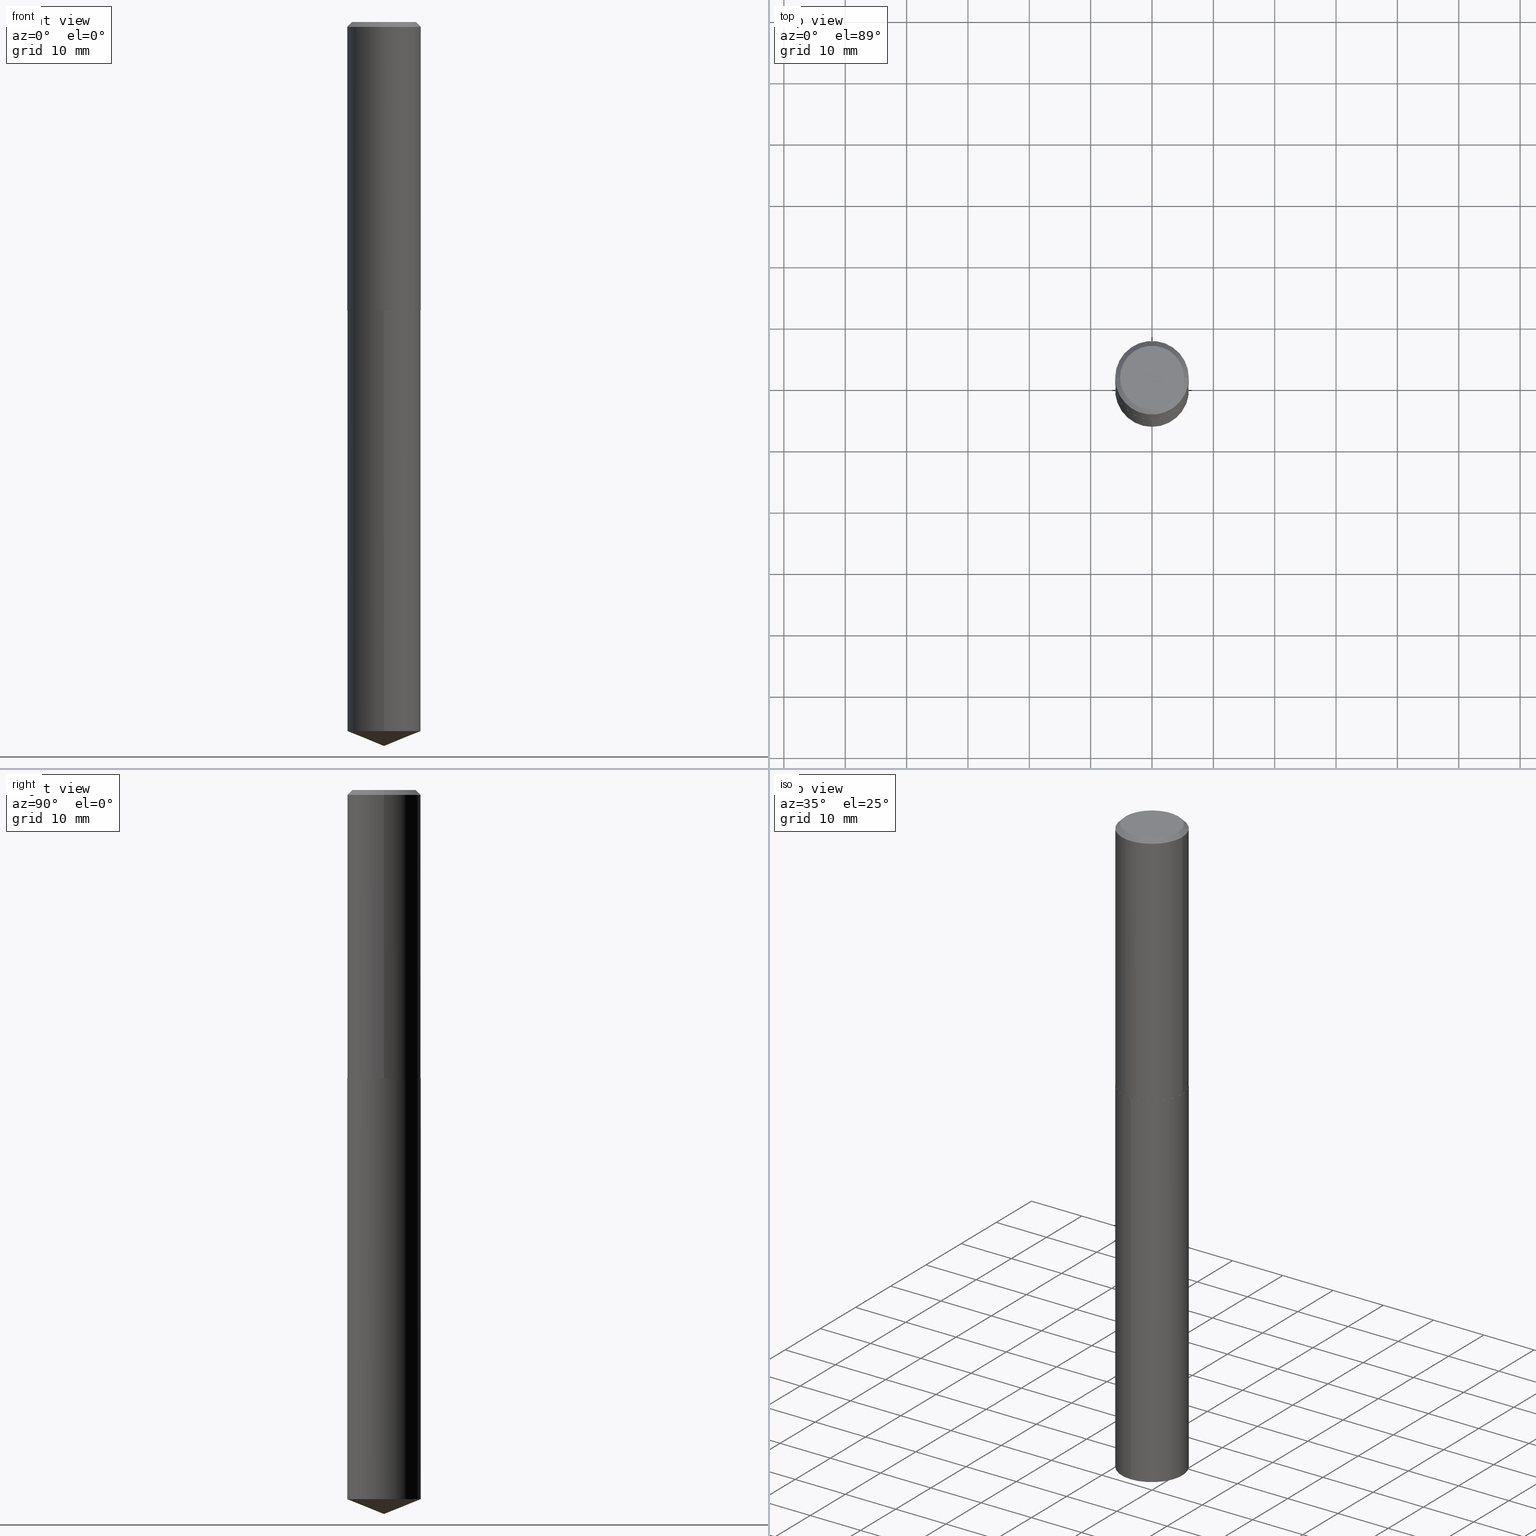
[diagram: canonical four-view strip — front | top / right | iso, engineering-drawing reading convention]
A machine part, canonical four-view strip (front | top / right | iso — engineering-drawing reading convention). The complete STEP part file that produces these views, byte-faithful:
ISO-10303-21;
HEADER;
FILE_DESCRIPTION (( 'STEP AP203' ),
    '1' );
FILE_NAME ('69313.STEP',
    '2024-04-23T14:51:10',
    ( '' ),
    ( '' ),
    'SwSTEP 2.0',
    'SolidWorks 2023',
    '' );
FILE_SCHEMA (( 'CONFIG_CONTROL_DESIGN' ));
ENDSEC;

DATA;
#1 = LINE ( 'NONE', #293, #345 ) ;
#2 = EDGE_CURVE ( 'NONE', #341, #348, #40, .T. ) ;
#3 = EDGE_LOOP ( 'NONE', ( #312, #317, #286, #302 ) ) ;
#4 = FACE_OUTER_BOUND ( 'NONE', #289, .T. ) ;
#5 = CONICAL_SURFACE ( 'NONE', #137, 0.2362000000000002709, 0.7853981633976532262 ) ;
#6 = DIRECTION ( 'NONE',  ( 1.000000000000000000, -6.982962677686269077E-15, 0.000000000000000000 ) ) ;
#7 = FACE_OUTER_BOUND ( 'NONE', #259, .T. ) ;
#8 = DIRECTION ( 'NONE',  ( -2.445468806185136877E-29, 3.491481338843145188E-15, 1.000000000000000000 ) ) ;
#9 = EDGE_CURVE ( 'NONE', #127, #17, #284, .T. ) ;
#10 = CIRCLE ( 'NONE', #91, 0.2361999999999999933 ) ;
#11 = CYLINDRICAL_SURFACE ( 'NONE', #86, 0.2361999999999999933 ) ;
#12 = ORIENTED_EDGE ( 'NONE', *, *, #224, .T. ) ;
#13 = COORDINATED_UNIVERSAL_TIME_OFFSET ( 5, 0, .BEHIND. ) ;
#14 = ORIENTED_EDGE ( 'NONE', *, *, #54, .F. ) ;
#15 = AXIS2_PLACEMENT_3D ( 'NONE', #288, #73, #141 ) ;
#16 = PERSON_AND_ORGANIZATION ( #270, #80 ) ;
#17 = VERTEX_POINT ( 'NONE', #319 ) ;
#18 = PERSON_AND_ORGANIZATION ( #270, #80 ) ;
#19 = ORIENTED_EDGE ( 'NONE', *, *, #292, .F. ) ;
#20 = ORIENTED_EDGE ( 'NONE', *, *, #343, .F. ) ;
#21 = ADVANCED_FACE ( 'NONE', ( #357 ), #188, .F. ) ;
#22 = LINE ( 'NONE', #361, #307 ) ;
#23 = DIRECTION ( 'NONE',  ( -2.445731720170191402E-29, 3.491104831052412813E-15, 1.000000000000000000 ) ) ;
#24 = DESIGN_CONTEXT ( 'detailed design', #313, 'design' ) ;
#25 = EDGE_CURVE ( 'NONE', #348, #341, #353, .T. ) ;
#26 = CARTESIAN_POINT ( 'NONE',  ( 4.524606385203739825E-29, -6.459938773127588186E-15, -1.850200000000000067 ) ) ;
#27 = AXIS2_PLACEMENT_3D ( 'NONE', #258, #385, #358 ) ;
#28 = DIRECTION ( 'NONE',  ( -2.445468806185136597E-29, 3.491481338843145583E-15, 1.000000000000000000 ) ) ;
#29 = LOCAL_TIME ( 10, 51, 10.00000000000000000, #377 ) ;
#30 = DIRECTION ( 'NONE',  ( 2.445468806185136597E-29, -3.491481338843145583E-15, -1.000000000000000000 ) ) ;
#31 = CC_DESIGN_PERSON_AND_ORGANIZATION_ASSIGNMENT ( #111, #163, ( #329 ) ) ;
#32 = FACE_OUTER_BOUND ( 'NONE', #112, .T. ) ;
#33 = DIRECTION ( 'NONE',  ( -2.445731720170191402E-29, 3.491104831052412813E-15, 1.000000000000000000 ) ) ;
#34 = VECTOR ( 'NONE', #33, 39.37007874015748143 ) ;
#35 = LOCAL_TIME ( 10, 51, 10.00000000000000000, #225 ) ;
#36 = DIRECTION ( 'NONE',  ( 1.000000000000000000, -6.982962677686265922E-15, 0.000000000000000000 ) ) ;
#37 = ADVANCED_FACE ( 'NONE', ( #202 ), #5, .T. ) ;
#38 = LINE ( 'NONE', #368, #153 ) ;
#39 = CARTESIAN_POINT ( 'NONE',  ( 1.678301941865468215E-15, 0.2361999999999935540, -1.850700000000000900 ) ) ;
#40 = CIRCLE ( 'NONE', #359, 0.2049499999999999933 ) ;
#41 = APPROVAL_STATUS ( 'not_yet_approved' ) ;
#42 = EDGE_CURVE ( 'NONE', #257, #328, #1, .T. ) ;
#43 = PERSON_AND_ORGANIZATION ( #270, #80 ) ;
#44 = DIRECTION ( 'NONE',  ( -2.445468806185136597E-29, 3.491481338843145583E-15, 1.000000000000000000 ) ) ;
#45 = ORIENTED_EDGE ( 'NONE', *, *, #9, .T. ) ;
#46 = CC_DESIGN_APPROVAL ( #266, ( #329 ) ) ;
#47 = PERSON_AND_ORGANIZATION_ROLE ( 'classification_officer' ) ;
#48 = ORIENTED_EDGE ( 'NONE', *, *, #228, .T. ) ;
#49 = ADVANCED_FACE ( 'NONE', ( #114 ), #176, .T. ) ;
#50 = PERSON_AND_ORGANIZATION ( #270, #80 ) ;
#51 = EDGE_LOOP ( 'NONE', ( #381, #222 ) ) ;
#52 = DIRECTION ( 'NONE',  ( 2.438088387897960049E-29, -3.491481338843145188E-15, -1.000000000000000000 ) ) ;
#53 = FACE_OUTER_BOUND ( 'NONE', #242, .T. ) ;
#54 = EDGE_CURVE ( 'NONE', #246, #349, #61, .T. ) ;
#55 = CARTESIAN_POINT ( 'NONE',  ( 4.525829119606832626E-29, -6.461684513797009689E-15, -1.850700000000000012 ) ) ;
#56 = LINE ( 'NONE', #175, #165 ) ;
#57 = CIRCLE ( 'NONE', #200, 0.2361999999999999933 ) ;
#58 = CIRCLE ( 'NONE', #27, 0.2357000000000001594 ) ;
#59 = FACE_OUTER_BOUND ( 'NONE', #243, .T. ) ;
#60 = EDGE_CURVE ( 'NONE', #349, #257, #10, .T. ) ;
#61 = LINE ( 'NONE', #388, #185 ) ;
#62 = DIRECTION ( 'NONE',  ( -2.445731720170191122E-29, 3.491104831052412813E-15, 1.000000000000000000 ) ) ;
#63 = ORIENTED_EDGE ( 'NONE', *, *, #9, .F. ) ;
#64 = AXIS2_PLACEMENT_3D ( 'NONE', #299, #30, #89 ) ;
#65 = LINE ( 'NONE', #184, #110 ) ;
#66 = ORIENTED_EDGE ( 'NONE', *, *, #298, .F. ) ;
#67 = DIRECTION ( 'NONE',  ( -6.982962677686265922E-15, -1.000000000000000000, 4.626330217890369336E-15 ) ) ;
#68 = DATE_TIME_ROLE ( 'creation_date' ) ;
#69 = AXIS2_PLACEMENT_3D ( 'NONE', #227, #260, #264 ) ;
#70 = ORIENTED_EDGE ( 'NONE', *, *, #372, .T. ) ;
#71 = MANIFOLD_SOLID_BREP ( 'Body-Move/Copy2[1]', #365 ) ;
#72 = APPROVAL_DATE_TIME ( #220, #266 ) ;
#73 = DIRECTION ( 'NONE',  ( -2.445468806185136597E-29, 3.491481338843145583E-15, 1.000000000000000000 ) ) ;
#74 = APPROVAL_ROLE ( '' ) ;
#75 = ORIENTED_EDGE ( 'NONE', *, *, #228, .F. ) ;
#76 = APPROVAL_DATE_TIME ( #187, #356 ) ;
#77 = ORIENTED_EDGE ( 'NONE', *, *, #343, .T. ) ;
#78 = AXIS2_PLACEMENT_3D ( 'NONE', #360, #150, #118 ) ;
#79 = EDGE_CURVE ( 'NONE', #139, #238, #256, .T. ) ;
#80 = ORGANIZATION ( 'UNSPECIFIED', 'UNSPECIFIED', '' ) ;
#81 = APPROVAL_STATUS ( 'not_yet_approved' ) ;
#82 = ORIENTED_EDGE ( 'NONE', *, *, #350, .T. ) ;
#83 = EDGE_LOOP ( 'NONE', ( #352, #267, #45, #66 ) ) ;
#84 = CARTESIAN_POINT ( 'NONE',  ( 7.642090019328607041E-31, -1.091087918388490883E-16, -0.03125000000000022898 ) ) ;
#85 = VECTOR ( 'NONE', #300, 39.37007874015748143 ) ;
#86 = AXIS2_PLACEMENT_3D ( 'NONE', #277, #271, #239 ) ;
#87 = DIRECTION ( 'NONE',  ( -1.000000000000000000, 6.982962677686266711E-15, 0.000000000000000000 ) ) ;
#88 = DIRECTION ( 'NONE',  ( -2.438088387897960049E-29, 3.491481338843145188E-15, 1.000000000000000000 ) ) ;
#89 = DIRECTION ( 'NONE',  ( -1.000000000000000000, 6.982962677686266711E-15, 0.000000000000000000 ) ) ;
#90 = ADVANCED_FACE ( 'NONE', ( #233 ), #147, .T. ) ;
#91 = AXIS2_PLACEMENT_3D ( 'NONE', #148, #265, #204 ) ;
#92 = FACE_OUTER_BOUND ( 'NONE', #136, .T. ) ;
#93 = CARTESIAN_POINT ( 'NONE',  ( -1.649375784469385099E-15, -0.2362000000000159805, -4.550569005457735905 ) ) ;
#94 = CARTESIAN_POINT ( 'NONE',  ( 1.136287810528595700E-28, -1.621967304506950869E-14, -4.645999999999999908 ) ) ;
#95 = CC_DESIGN_PERSON_AND_ORGANIZATION_ASSIGNMENT ( #190, #47, ( #123 ) ) ;
#96 = CARTESIAN_POINT ( 'NONE',  ( 4.525829119606832626E-29, -6.461684513797009689E-15, -1.850700000000000012 ) ) ;
#97 = DIRECTION ( 'NONE',  ( -2.445468806185136597E-29, 3.491481338843145583E-15, 1.000000000000000000 ) ) ;
#98 = EDGE_CURVE ( 'NONE', #341, #127, #205, .T. ) ;
#99 = DIRECTION ( 'NONE',  ( 6.982962677686265922E-15, 1.000000000000000000, -3.491104831052412813E-15 ) ) ;
#100 = ORIENTED_EDGE ( 'NONE', *, *, #244, .T. ) ;
#101 = EDGE_LOOP ( 'NONE', ( #12, #105, #378, #109 ) ) ;
#102 = CONICAL_SURFACE ( 'NONE', #275, 0.2361999999999999933, 0.7853981633974447263 ) ;
#103 = PRODUCT_DEFINITION_FORMATION_WITH_SPECIFIED_SOURCE ( 'ANY', '', #384, .NOT_KNOWN. ) ;
#104 = CALENDAR_DATE ( 2024, 23, 4 ) ;
#105 = ORIENTED_EDGE ( 'NONE', *, *, #125, .T. ) ;
#106 = DIRECTION ( 'NONE',  ( 1.000000000000000000, 0.000000000000000000, 0.000000000000000000 ) ) ;
#107 = EDGE_LOOP ( 'NONE', ( #334, #143, #196, #77 ) ) ;
#108 = ADVANCED_FACE ( 'NONE', ( #92 ), #172, .T. ) ;
#109 = ORIENTED_EDGE ( 'NONE', *, *, #183, .F. ) ;
#110 = VECTOR ( 'NONE', #8, 39.37007874015748143 ) ;
#111 = PERSON_AND_ORGANIZATION ( #270, #80 ) ;
#112 = EDGE_LOOP ( 'NONE', ( #193, #383, #379, #75 ) ) ;
#113 = ADVANCED_FACE ( 'NONE', ( #59 ), #130, .T. ) ;
#114 = FACE_OUTER_BOUND ( 'NONE', #101, .T. ) ;
#115 = CARTESIAN_POINT ( 'NONE',  ( 0.2361999999999999933, -1.758484576308345231E-15, -0.03125000000000022898 ) ) ;
#116 = VECTOR ( 'NONE', #230, 39.37007874015748143 ) ;
#117 = AXIS2_PLACEMENT_3D ( 'NONE', #252, #380, #106 ) ;
#118 = DIRECTION ( 'NONE',  ( 1.000000000000000000, -6.982962677686269077E-15, 0.000000000000000000 ) ) ;
#119 = FACE_OUTER_BOUND ( 'NONE', #107, .T. ) ;
#120 = CC_DESIGN_PERSON_AND_ORGANIZATION_ASSIGNMENT ( #43, #250, ( #103 ) ) ;
#121 = CARTESIAN_POINT ( 'NONE',  ( 4.524606385203739825E-29, -6.459938773127588186E-15, -1.850200000000000067 ) ) ;
#122 = CIRCLE ( 'NONE', #144, 0.2361999999999999933 ) ;
#123 = SECURITY_CLASSIFICATION ( '', '', #282 ) ;
#124 = CARTESIAN_POINT ( 'NONE',  ( -1.649375784469450574E-15, -0.2362000000000064603, -1.850699999999999124 ) ) ;
#125 = EDGE_CURVE ( 'NONE', #249, #139, #22, .T. ) ;
#126 = DIRECTION ( 'NONE',  ( -2.445731720170191122E-29, 3.491104831052412813E-15, 1.000000000000000000 ) ) ;
#127 = VERTEX_POINT ( 'NONE', #115 ) ;
#128 = DIRECTION ( 'NONE',  ( -6.982962677686265922E-15, -1.000000000000000000, 3.469747663417777397E-15 ) ) ;
#129 = CARTESIAN_POINT ( 'NONE',  ( -0.2049499999999999933, 1.485712596711223663E-15, 4.818985154634640807E-18 ) ) ;
#130 = CONICAL_SURFACE ( 'NONE', #211, 97.44436430772951496, 1.186823891356148852 ) ;
#131 = CIRCLE ( 'NONE', #194, 0.2361999999999999933 ) ;
#132 = CARTESIAN_POINT ( 'NONE',  ( -8.492626740340265813E-28, 1.212247022406398473E-13, 34.72407874015748064 ) ) ;
#133 = ADVANCED_FACE ( 'NONE', ( #119 ), #223, .T. ) ;
#134 = DIRECTION ( 'NONE',  ( -1.000000000000000000, 6.982962677686265922E-15, -4.876176775795935793E-29 ) ) ;
#135 = DATE_AND_TIME ( #218, #339 ) ;
#136 = EDGE_LOOP ( 'NONE', ( #253, #219, #283, #20 ) ) ;
#137 = AXIS2_PLACEMENT_3D ( 'NONE', #26, #28, #146 ) ;
#138 = APPROVAL_ROLE ( '' ) ;
#139 = VERTEX_POINT ( 'NONE', #294 ) ;
#140 = SHAPE_DEFINITION_REPRESENTATION ( #320, #281 ) ;
#141 = DIRECTION ( 'NONE',  ( 1.000000000000000000, -6.982962677686266711E-15, 0.000000000000000000 ) ) ;
#142 = MECHANICAL_CONTEXT ( 'NONE', #295, 'mechanical' ) ;
#143 = ORIENTED_EDGE ( 'NONE', *, *, #25, .F. ) ;
#144 = AXIS2_PLACEMENT_3D ( 'NONE', #229, #178, #363 ) ;
#145 = APPROVAL ( #192, 'UNSPECIFIED' ) ;
#146 = DIRECTION ( 'NONE',  ( 1.000000000000000000, -6.982962677686269077E-15, 0.000000000000000000 ) ) ;
#147 = CYLINDRICAL_SURFACE ( 'NONE', #338, 0.2362000000000001321 ) ;
#148 = CARTESIAN_POINT ( 'NONE',  ( 1.112898438655916629E-28, -1.588721024195918932E-14, -4.550569005457737681 ) ) ;
#149 = CC_DESIGN_APPROVAL ( #356, ( #103 ) ) ;
#150 = DIRECTION ( 'NONE',  ( -2.445468806185136597E-29, 3.491481338843145583E-15, 1.000000000000000000 ) ) ;
#151 = FACE_OUTER_BOUND ( 'NONE', #83, .T. ) ;
#152 = DIRECTION ( 'NONE',  ( -2.445731720170191122E-29, 3.491104831052412813E-15, 1.000000000000000000 ) ) ;
#153 = VECTOR ( 'NONE', #179, 39.37007874015748143 ) ;
#154 = CARTESIAN_POINT ( 'NONE',  ( 7.642090019328607041E-31, -1.091087918388490883E-16, -0.03125000000000022898 ) ) ;
#155 = PLANE ( 'NONE',  #276 ) ;
#156 = CARTESIAN_POINT ( 'NONE',  ( 1.112898438655916629E-28, -1.588721024195918932E-14, -4.550569005457737681 ) ) ;
#157 = AXIS2_PLACEMENT_3D ( 'NONE', #237, #304, #128 ) ;
#158 = DIRECTION ( 'NONE',  ( 2.445731720170190841E-29, -3.491104831052412813E-15, -1.000000000000000000 ) ) ;
#159 = EDGE_CURVE ( 'NONE', #249, #221, #58, .T. ) ;
#160 = APPROVAL_ROLE ( '' ) ;
#161 = DIRECTION ( 'NONE',  ( 1.000000000000000000, -6.982962677686266711E-15, 4.876118559169178830E-29 ) ) ;
#162 = EDGE_CURVE ( 'NONE', #251, #328, #122, .T. ) ;
#163 = PERSON_AND_ORGANIZATION_ROLE ( 'creator' ) ;
#164 = ORIENTED_EDGE ( 'NONE', *, *, #162, .T. ) ;
#165 = VECTOR ( 'NONE', #296, 39.37007874015748854 ) ;
#166 = DATE_AND_TIME ( #315, #29 ) ;
#167 = DIRECTION ( 'NONE',  ( -2.445468806185136597E-29, 3.491481338843145583E-15, 1.000000000000000000 ) ) ;
#168 =( NAMED_UNIT ( * ) PLANE_ANGLE_UNIT ( ) SI_UNIT ( $, .RADIAN. ) );
#169 = ADVANCED_FACE ( 'NONE', ( #151 ), #102, .T. ) ;
#170 = ORIENTED_EDGE ( 'NONE', *, *, #372, .F. ) ;
#171 = EDGE_LOOP ( 'NONE', ( #82, #100, #63, #342 ) ) ;
#172 = CYLINDRICAL_SURFACE ( 'NONE', #69, 0.2362000000000001321 ) ;
#173 = DIRECTION ( 'NONE',  ( -6.474490251793188884E-15, -0.9271838545667878684, 0.3746065934159108490 ) ) ;
#174 = ADVANCED_FACE ( 'NONE', ( #53 ), #324, .F. ) ;
#175 = CARTESIAN_POINT ( 'NONE',  ( 0.2362000000000002709, -8.109314557597087077E-15, -1.850200000000000067 ) ) ;
#176 = CONICAL_SURFACE ( 'NONE', #370, 0.2362000000000002709, 0.7853981633976532262 ) ;
#177 = LOCAL_TIME ( 10, 51, 10.00000000000000000, #285 ) ;
#178 = DIRECTION ( 'NONE',  ( -2.445731720170191122E-29, 3.491104831052412813E-15, 1.000000000000000000 ) ) ;
#179 = DIRECTION ( 'NONE',  ( -2.445468806185136877E-29, 3.491481338843145188E-15, 1.000000000000000000 ) ) ;
#180 = CARTESIAN_POINT ( 'NONE',  ( -1.649375784469450574E-15, -0.2362000000000064603, -1.850699999999999124 ) ) ;
#181 = DIRECTION ( 'NONE',  ( -2.445468806185136597E-29, 3.491481338843145583E-15, 1.000000000000000000 ) ) ;
#182 = CARTESIAN_POINT ( 'NONE',  ( 4.525829119606832626E-29, -6.461684513797009689E-15, -1.850700000000000012 ) ) ;
#183 = EDGE_CURVE ( 'NONE', #221, #238, #56, .T. ) ;
#184 = CARTESIAN_POINT ( 'NONE',  ( -0.2362000000000001321, 1.678301941865357577E-15, -1.161852468318209457E-29 ) ) ;
#185 = VECTOR ( 'NONE', #173, 39.37007874015748143 ) ;
#186 = LOCAL_TIME ( 10, 51, 10.00000000000000000, #195 ) ;
#187 = DATE_AND_TIME ( #318, #35 ) ;
#188 = PLANE ( 'NONE',  #215 ) ;
#189 = EDGE_CURVE ( 'NONE', #238, #127, #38, .T. ) ;
#190 = PERSON_AND_ORGANIZATION ( #270, #80 ) ;
#191 = ORIENTED_EDGE ( 'NONE', *, *, #42, .T. ) ;
#192 = APPROVAL_STATUS ( 'not_yet_approved' ) ;
#193 = ORIENTED_EDGE ( 'NONE', *, *, #42, .F. ) ;
#194 = AXIS2_PLACEMENT_3D ( 'NONE', #154, #268, #241 ) ;
#195 = COORDINATED_UNIVERSAL_TIME_OFFSET ( 5, 0, .BEHIND. ) ;
#196 = ORIENTED_EDGE ( 'NONE', *, *, #298, .T. ) ;
#197 = ADVANCED_FACE ( 'NONE', ( #7 ), #155, .F. ) ;
#198 = CARTESIAN_POINT ( 'NONE',  ( -1.178467787315321149E-46, 1.682539673960460649E-32, 4.818985154644839761E-18 ) ) ;
#199 = DIRECTION ( 'NONE',  ( 2.445468806185136597E-29, -3.491481338843145583E-15, -1.000000000000000000 ) ) ;
#200 = AXIS2_PLACEMENT_3D ( 'NONE', #182, #62, #273 ) ;
#201 = CONICAL_SURFACE ( 'NONE', #212, 97.44436430772951496, 1.186823891356148852 ) ;
#202 = FACE_OUTER_BOUND ( 'NONE', #3, .T. ) ;
#203 = CC_DESIGN_DATE_AND_TIME_ASSIGNMENT ( #308, #68, ( #329 ) ) ;
#204 = DIRECTION ( 'NONE',  ( -6.982962677686265922E-15, -1.000000000000000000, 4.626330217890369336E-15 ) ) ;
#205 = LINE ( 'NONE', #330, #116 ) ;
#206 = AXIS2_PLACEMENT_3D ( 'NONE', #344, #181, #36 ) ;
#207 = CC_DESIGN_DATE_AND_TIME_ASSIGNMENT ( #135, #248, ( #123 ) ) ;
#208 = DIRECTION ( 'NONE',  ( -2.445731720170191122E-29, 3.491104831052412813E-15, 1.000000000000000000 ) ) ;
#209 = LINE ( 'NONE', #94, #297 ) ;
#210 = DIRECTION ( 'NONE',  ( -6.982962677686266711E-15, -1.000000000000000000, 3.498761904101788509E-15 ) ) ;
#211 = AXIS2_PLACEMENT_3D ( 'NONE', #390, #208, #290 ) ;
#212 = AXIS2_PLACEMENT_3D ( 'NONE', #132, #126, #210 ) ;
#213 = CARTESIAN_POINT ( 'NONE',  ( 0.2362000000000002709, -8.109314557597087077E-15, -1.850200000000000067 ) ) ;
#214 = CARTESIAN_POINT ( 'NONE',  ( -0.2357000000000001594, -4.784286058436341415E-15, -1.850700000000000012 ) ) ;
#215 = AXIS2_PLACEMENT_3D ( 'NONE', #321, #52, #134 ) ;
#216 = APPLICATION_PROTOCOL_DEFINITION ( 'international standard', 'config_control_design', 1994, #313 ) ;
#217 = DIRECTION ( 'NONE',  ( 1.000000000000000000, -6.982962677686266711E-15, 4.876118559169178830E-29 ) ) ;
#218 = CALENDAR_DATE ( 2024, 23, 4 ) ;
#219 = ORIENTED_EDGE ( 'NONE', *, *, #79, .T. ) ;
#220 = DATE_AND_TIME ( #347, #186 ) ;
#221 = VERTEX_POINT ( 'NONE', #236 ) ;
#222 = ORIENTED_EDGE ( 'NONE', *, *, #2, .T. ) ;
#223 = CONICAL_SURFACE ( 'NONE', #64, 0.2361999999999999933, 0.7853981633974447263 ) ;
#224 = EDGE_CURVE ( 'NONE', #221, #249, #375, .T. ) ;
#225 = COORDINATED_UNIVERSAL_TIME_OFFSET ( 5, 0, .BEHIND. ) ;
#226 = ORIENTED_EDGE ( 'NONE', *, *, #60, .T. ) ;
#227 = CARTESIAN_POINT ( 'NONE',  ( 0.000000000000000000, 0.000000000000000000, 0.000000000000000000 ) ) ;
#228 = EDGE_CURVE ( 'NONE', #328, #251, #57, .T. ) ;
#229 = CARTESIAN_POINT ( 'NONE',  ( 4.525829119606832626E-29, -6.461684513797009689E-15, -1.850700000000000012 ) ) ;
#230 = DIRECTION ( 'NONE',  ( 0.7071067811865450192, -7.319954787623246579E-15, -0.7071067811865500152 ) ) ;
#231 = DIRECTION ( 'NONE',  ( -2.445468806185136597E-29, 3.491481338843145583E-15, 1.000000000000000000 ) ) ;
#232 = ORIENTED_EDGE ( 'NONE', *, *, #54, .T. ) ;
#233 = FACE_OUTER_BOUND ( 'NONE', #171, .T. ) ;
#234 = ORIENTED_EDGE ( 'NONE', *, *, #278, .F. ) ;
#235 = CC_DESIGN_SECURITY_CLASSIFICATION ( #123, ( #103 ) ) ;
#236 = CARTESIAN_POINT ( 'NONE',  ( 0.2357000000000001594, -8.107568816927663207E-15, -1.850700000000000012 ) ) ;
#237 = CARTESIAN_POINT ( 'NONE',  ( 4.525829119606832626E-29, -6.461684513797009689E-15, -1.850700000000000012 ) ) ;
#238 = VERTEX_POINT ( 'NONE', #213 ) ;
#239 = DIRECTION ( 'NONE',  ( -6.982962677686265922E-15, -1.000000000000000000, 3.469747663417777397E-15 ) ) ;
#240 = CARTESIAN_POINT ( 'NONE',  ( 4.524606385203739825E-29, -6.459938773127588186E-15, -1.850200000000000067 ) ) ;
#241 = DIRECTION ( 'NONE',  ( 1.000000000000000000, -6.982962677686266711E-15, 0.000000000000000000 ) ) ;
#242 = EDGE_LOOP ( 'NONE', ( #327, #306 ) ) ;
#243 = EDGE_LOOP ( 'NONE', ( #14, #70, #279 ) ) ;
#244 = EDGE_CURVE ( 'NONE', #139, #17, #65, .T. ) ;
#245 =( NAMED_UNIT ( * ) SI_UNIT ( $, .STERADIAN. ) SOLID_ANGLE_UNIT ( ) );
#246 = VERTEX_POINT ( 'NONE', #371 ) ;
#247 = CIRCLE ( 'NONE', #331, 0.2361999999999999933 ) ;
#248 = DATE_TIME_ROLE ( 'classification_date' ) ;
#249 = VERTEX_POINT ( 'NONE', #214 ) ;
#250 = PERSON_AND_ORGANIZATION_ROLE ( 'design_supplier' ) ;
#251 = VERTEX_POINT ( 'NONE', #124 ) ;
#252 = CARTESIAN_POINT ( 'NONE',  ( 0.000000000000000000, 0.000000000000000000, 0.000000000000000000 ) ) ;
#253 = ORIENTED_EDGE ( 'NONE', *, *, #244, .F. ) ;
#254 = ADVANCED_FACE ( 'NONE', ( #32 ), #367, .T. ) ;
#255 = APPLICATION_PROTOCOL_DEFINITION ( 'international standard', 'config_control_design', 1994, #295 ) ;
#256 = CIRCLE ( 'NONE', #78, 0.2362000000000002709 ) ;
#257 = VERTEX_POINT ( 'NONE', #373 ) ;
#258 = CARTESIAN_POINT ( 'NONE',  ( 4.525829119606832626E-29, -6.461684513797009689E-15, -1.850700000000000012 ) ) ;
#259 = EDGE_LOOP ( 'NONE', ( #164, #48 ) ) ;
#260 = DIRECTION ( 'NONE',  ( -2.445468806185136597E-29, 3.491481338843145583E-15, 1.000000000000000000 ) ) ;
#261 = DIRECTION ( 'NONE',  ( -2.445468806185136597E-29, 3.491481338843145583E-15, 1.000000000000000000 ) ) ;
#262 = CLOSED_SHELL ( 'NONE', ( #169, #90, #49, #174, #37, #108, #133, #21 ) ) ;
#263 = APPROVAL_PERSON_ORGANIZATION ( #18, #266, #74 ) ;
#264 = DIRECTION ( 'NONE',  ( 1.000000000000000000, -6.982962677686266711E-15, 4.876176775795936353E-29 ) ) ;
#265 = DIRECTION ( 'NONE',  ( -2.445731720170191122E-29, 3.491104831052412813E-15, 1.000000000000000000 ) ) ;
#266 = APPROVAL ( #81, 'UNSPECIFIED' ) ;
#267 = ORIENTED_EDGE ( 'NONE', *, *, #98, .T. ) ;
#268 = DIRECTION ( 'NONE',  ( -2.445468806185136597E-29, 3.491481338843145583E-15, 1.000000000000000000 ) ) ;
#269 = APPROVAL_PERSON_ORGANIZATION ( #351, #356, #160 ) ;
#270 = PERSON ( 'UNSPECIFIED', 'UNSPECIFIED', 'UNSPECIFIED', ('UNSPECIFIED'), ('UNSPECIFIED'), ('UNSPECIFIED') ) ;
#271 = DIRECTION ( 'NONE',  ( -2.445731720170191122E-29, 3.491104831052412813E-15, 1.000000000000000000 ) ) ;
#272 = PRODUCT_RELATED_PRODUCT_CATEGORY ( 'detail', '', ( #384 ) ) ;
#273 = DIRECTION ( 'NONE',  ( -6.982962677686265922E-15, -1.000000000000000000, 3.469747663417777397E-15 ) ) ;
#274 = FACE_OUTER_BOUND ( 'NONE', #374, .T. ) ;
#275 = AXIS2_PLACEMENT_3D ( 'NONE', #84, #199, #87 ) ;
#276 = AXIS2_PLACEMENT_3D ( 'NONE', #96, #158, #99 ) ;
#277 = CARTESIAN_POINT ( 'NONE',  ( 4.525829119606832626E-29, -6.461684513797009689E-15, -1.850700000000000012 ) ) ;
#278 = EDGE_CURVE ( 'NONE', #349, #251, #340, .T. ) ;
#279 = ORIENTED_EDGE ( 'NONE', *, *, #60, .F. ) ;
#280 =( CONVERSION_BASED_UNIT ( 'INCH', #382 ) LENGTH_UNIT ( ) NAMED_UNIT ( #389 ) );
#281 = ADVANCED_BREP_SHAPE_REPRESENTATION ( '69313', ( #71, #325, #117 ), #303 ) ;
#282 = SECURITY_CLASSIFICATION_LEVEL ( 'unclassified' ) ;
#283 = ORIENTED_EDGE ( 'NONE', *, *, #189, .T. ) ;
#284 = CIRCLE ( 'NONE', #15, 0.2361999999999999933 ) ;
#285 = COORDINATED_UNIVERSAL_TIME_OFFSET ( 5, 0, .BEHIND. ) ;
#286 = ORIENTED_EDGE ( 'NONE', *, *, #183, .T. ) ;
#287 = APPROVAL_DATE_TIME ( #166, #145 ) ;
#288 = CARTESIAN_POINT ( 'NONE',  ( 7.642090019328607041E-31, -1.091087918388490883E-16, -0.03125000000000022898 ) ) ;
#289 = EDGE_LOOP ( 'NONE', ( #170, #232, #19 ) ) ;
#290 = DIRECTION ( 'NONE',  ( -6.982962677686266711E-15, -1.000000000000000000, 3.498761904101788509E-15 ) ) ;
#291 = AXIS2_PLACEMENT_3D ( 'NONE', #240, #97, #6 ) ;
#292 = EDGE_CURVE ( 'NONE', #257, #349, #247, .T. ) ;
#293 = CARTESIAN_POINT ( 'NONE',  ( 1.678301941865401754E-15, 0.2361999999999935540, -1.850700000000000900 ) ) ;
#294 = CARTESIAN_POINT ( 'NONE',  ( -0.2362000000000002709, -4.781636831262230214E-15, -1.850200000000000067 ) ) ;
#295 = APPLICATION_CONTEXT ( 'configuration controlled 3d designs of mechanical parts and assemblies' ) ;
#296 = DIRECTION ( 'NONE',  ( 0.7071067811866923458, -2.468850131083773646E-15, 0.7071067811864025776 ) ) ;
#297 = VECTOR ( 'NONE', #337, 39.37007874015748854 ) ;
#298 = EDGE_CURVE ( 'NONE', #348, #17, #305, .T. ) ;
#299 = CARTESIAN_POINT ( 'NONE',  ( 7.642090019328607041E-31, -1.091087918388490883E-16, -0.03125000000000022898 ) ) ;
#300 = DIRECTION ( 'NONE',  ( -0.7071067811865450192, 2.468850131082230634E-15, -0.7071067811865500152 ) ) ;
#301 = CARTESIAN_POINT ( 'NONE',  ( -0.2361999999999999933, 1.540266992630647030E-15, -0.03125000000000022898 ) ) ;
#302 = ORIENTED_EDGE ( 'NONE', *, *, #79, .F. ) ;
#303 =( GEOMETRIC_REPRESENTATION_CONTEXT ( 3 ) GLOBAL_UNCERTAINTY_ASSIGNED_CONTEXT ( ( #314 ) ) GLOBAL_UNIT_ASSIGNED_CONTEXT ( ( #280, #168, #245 ) ) REPRESENTATION_CONTEXT ( 'NONE', 'WORKASPACE' ) );
#304 = DIRECTION ( 'NONE',  ( -2.445731720170191122E-29, 3.491104831052412813E-15, 1.000000000000000000 ) ) ;
#305 = LINE ( 'NONE', #301, #85 ) ;
#306 = ORIENTED_EDGE ( 'NONE', *, *, #159, .F. ) ;
#307 = VECTOR ( 'NONE', #386, 39.37007874015748854 ) ;
#308 = DATE_AND_TIME ( #104, #177 ) ;
#309 = PERSON_AND_ORGANIZATION_ROLE ( 'creator' ) ;
#310 = CARTESIAN_POINT ( 'NONE',  ( -1.178467787315321149E-46, 1.682539673960460649E-32, 4.818985154644839761E-18 ) ) ;
#311 = PERSON_AND_ORGANIZATION ( #270, #80 ) ;
#312 = ORIENTED_EDGE ( 'NONE', *, *, #125, .F. ) ;
#313 = APPLICATION_CONTEXT ( 'configuration controlled 3d designs of mechanical parts and assemblies' ) ;
#314 = UNCERTAINTY_MEASURE_WITH_UNIT (LENGTH_MEASURE( 1.000000000000000082E-05 ), #280, 'distance_accuracy_value', 'NONE');
#315 = CALENDAR_DATE ( 2024, 23, 4 ) ;
#316 = CIRCLE ( 'NONE', #291, 0.2362000000000002709 ) ;
#317 = ORIENTED_EDGE ( 'NONE', *, *, #159, .T. ) ;
#318 = CALENDAR_DATE ( 2024, 23, 4 ) ;
#319 = CARTESIAN_POINT ( 'NONE',  ( -0.2361999999999999933, -1.606221840617860474E-15, -0.03125000000000022898 ) ) ;
#320 = PRODUCT_DEFINITION_SHAPE ( 'NONE', 'NONE',  #329 ) ;
#321 = CARTESIAN_POINT ( 'NONE',  ( -5.892338936576605744E-47, 8.412698369802303245E-33, 2.409492577322419881E-18 ) ) ;
#322 = AXIS2_PLACEMENT_3D ( 'NONE', #55, #88, #326 ) ;
#323 = DIRECTION ( 'NONE',  ( 1.000000000000000000, -6.982962677686269077E-15, 0.000000000000000000 ) ) ;
#324 = PLANE ( 'NONE',  #322 ) ;
#325 = MANIFOLD_SOLID_BREP ( 'Body-Move/Copy2[2]', #262 ) ;
#326 = DIRECTION ( 'NONE',  ( 1.000000000000000000, -6.982962677686265922E-15, 4.876176775795935793E-29 ) ) ;
#327 = ORIENTED_EDGE ( 'NONE', *, *, #224, .F. ) ;
#328 = VERTEX_POINT ( 'NONE', #39 ) ;
#329 = PRODUCT_DEFINITION ( 'UNKNOWN', '', #103, #24 ) ;
#330 = CARTESIAN_POINT ( 'NONE',  ( 0.2361999999999999933, -1.729558418912484771E-15, -0.03125000000000022898 ) ) ;
#331 = AXIS2_PLACEMENT_3D ( 'NONE', #156, #152, #67 ) ;
#332 = APPROVAL_PERSON_ORGANIZATION ( #16, #145, #138 ) ;
#333 = DIRECTION ( 'NONE',  ( 1.000000000000000000, -6.982962677686266711E-15, 4.876176775795936353E-29 ) ) ;
#334 = ORIENTED_EDGE ( 'NONE', *, *, #98, .F. ) ;
#335 = CARTESIAN_POINT ( 'NONE',  ( 0.2049499999999999933, -1.567808741777880040E-15, 4.818985154655325294E-18 ) ) ;
#336 = ADVANCED_FACE ( 'NONE', ( #274 ), #11, .T. ) ;
#337 = DIRECTION ( 'NONE',  ( 6.588037525764800757E-15, 0.9271838545667904219, 0.3746065934159043542 ) ) ;
#338 = AXIS2_PLACEMENT_3D ( 'NONE', #364, #261, #333 ) ;
#339 = LOCAL_TIME ( 10, 51, 10.00000000000000000, #13 ) ;
#340 = LINE ( 'NONE', #180, #34 ) ;
#341 = VERTEX_POINT ( 'NONE', #335 ) ;
#342 = ORIENTED_EDGE ( 'NONE', *, *, #189, .F. ) ;
#343 = EDGE_CURVE ( 'NONE', #17, #127, #131, .T. ) ;
#344 = CARTESIAN_POINT ( 'NONE',  ( 4.525829119606832626E-29, -6.461684513797009689E-15, -1.850700000000000012 ) ) ;
#345 = VECTOR ( 'NONE', #23, 39.37007874015748143 ) ;
#346 = CC_DESIGN_APPROVAL ( #145, ( #123 ) ) ;
#347 = CALENDAR_DATE ( 2024, 23, 4 ) ;
#348 = VERTEX_POINT ( 'NONE', #129 ) ;
#349 = VERTEX_POINT ( 'NONE', #93 ) ;
#350 = EDGE_CURVE ( 'NONE', #238, #139, #316, .T. ) ;
#351 = PERSON_AND_ORGANIZATION ( #270, #80 ) ;
#352 = ORIENTED_EDGE ( 'NONE', *, *, #2, .F. ) ;
#353 = CIRCLE ( 'NONE', #387, 0.2049499999999999933 ) ;
#354 = PERSON_AND_ORGANIZATION_ROLE ( 'design_owner' ) ;
#355 = ORIENTED_EDGE ( 'NONE', *, *, #162, .F. ) ;
#356 = APPROVAL ( #41, 'UNSPECIFIED' ) ;
#357 = FACE_OUTER_BOUND ( 'NONE', #51, .T. ) ;
#358 = DIRECTION ( 'NONE',  ( 1.000000000000000000, -6.982962677686265922E-15, 0.000000000000000000 ) ) ;
#359 = AXIS2_PLACEMENT_3D ( 'NONE', #198, #167, #217 ) ;
#360 = CARTESIAN_POINT ( 'NONE',  ( 4.524606385203739825E-29, -6.459938773127588186E-15, -1.850200000000000067 ) ) ;
#361 = CARTESIAN_POINT ( 'NONE',  ( -0.2362000000000002709, -4.781636831262230214E-15, -1.850200000000000067 ) ) ;
#362 = CC_DESIGN_PERSON_AND_ORGANIZATION_ASSIGNMENT ( #311, #354, ( #384 ) ) ;
#363 = DIRECTION ( 'NONE',  ( -6.982962677686265922E-15, -1.000000000000000000, 3.469747663417777397E-15 ) ) ;
#364 = CARTESIAN_POINT ( 'NONE',  ( 0.000000000000000000, 0.000000000000000000, 0.000000000000000000 ) ) ;
#365 = CLOSED_SHELL ( 'NONE', ( #336, #113, #366, #254, #197 ) ) ;
#366 = ADVANCED_FACE ( 'NONE', ( #4 ), #201, .T. ) ;
#367 = CYLINDRICAL_SURFACE ( 'NONE', #157, 0.2361999999999999933 ) ;
#368 = CARTESIAN_POINT ( 'NONE',  ( 0.2362000000000001321, -1.649375784469497117E-15, 1.151752954443000789E-29 ) ) ;
#369 =( LENGTH_UNIT ( ) NAMED_UNIT ( * ) SI_UNIT ( $, .METRE. ) );
#370 = AXIS2_PLACEMENT_3D ( 'NONE', #121, #231, #323 ) ;
#371 = CARTESIAN_POINT ( 'NONE',  ( 1.136286957191070851E-28, -1.621967304506950869E-14, -4.645999999999999908 ) ) ;
#372 = EDGE_CURVE ( 'NONE', #246, #257, #209, .T. ) ;
#373 = CARTESIAN_POINT ( 'NONE',  ( 1.678301941865468412E-15, 0.2361999999999842281, -4.550569005457738569 ) ) ;
#374 = EDGE_LOOP ( 'NONE', ( #226, #191, #355, #234 ) ) ;
#375 = CIRCLE ( 'NONE', #206, 0.2357000000000001594 ) ;
#376 = CC_DESIGN_PERSON_AND_ORGANIZATION_ASSIGNMENT ( #50, #309, ( #103 ) ) ;
#377 = COORDINATED_UNIVERSAL_TIME_OFFSET ( 5, 0, .BEHIND. ) ;
#378 = ORIENTED_EDGE ( 'NONE', *, *, #350, .F. ) ;
#379 = ORIENTED_EDGE ( 'NONE', *, *, #278, .T. ) ;
#380 = DIRECTION ( 'NONE',  ( 0.000000000000000000, 0.000000000000000000, 1.000000000000000000 ) ) ;
#381 = ORIENTED_EDGE ( 'NONE', *, *, #25, .T. ) ;
#382 = LENGTH_MEASURE_WITH_UNIT ( LENGTH_MEASURE( 0.02539999999999999897 ), #369 );
#383 = ORIENTED_EDGE ( 'NONE', *, *, #292, .T. ) ;
#384 = PRODUCT ( '69313', '69313', '', ( #142 ) ) ;
#385 = DIRECTION ( 'NONE',  ( -2.445468806185136597E-29, 3.491481338843145583E-15, 1.000000000000000000 ) ) ;
#386 = DIRECTION ( 'NONE',  ( -0.7071067811866923458, 7.493145998870876386E-15, 0.7071067811864025776 ) ) ;
#387 = AXIS2_PLACEMENT_3D ( 'NONE', #310, #44, #161 ) ;
#388 = CARTESIAN_POINT ( 'NONE',  ( 1.136189642208642685E-28, -1.622106665100613029E-14, -4.645999999999999908 ) ) ;
#389 = DIMENSIONAL_EXPONENTS ( 1.000000000000000000, 0.000000000000000000, 0.000000000000000000, 0.000000000000000000, 0.000000000000000000, 0.000000000000000000, 0.000000000000000000 ) ;
#390 = CARTESIAN_POINT ( 'NONE',  ( -8.492626740340265813E-28, 1.212247022406398473E-13, 34.72407874015748064 ) ) ;
ENDSEC;
END-ISO-10303-21;
